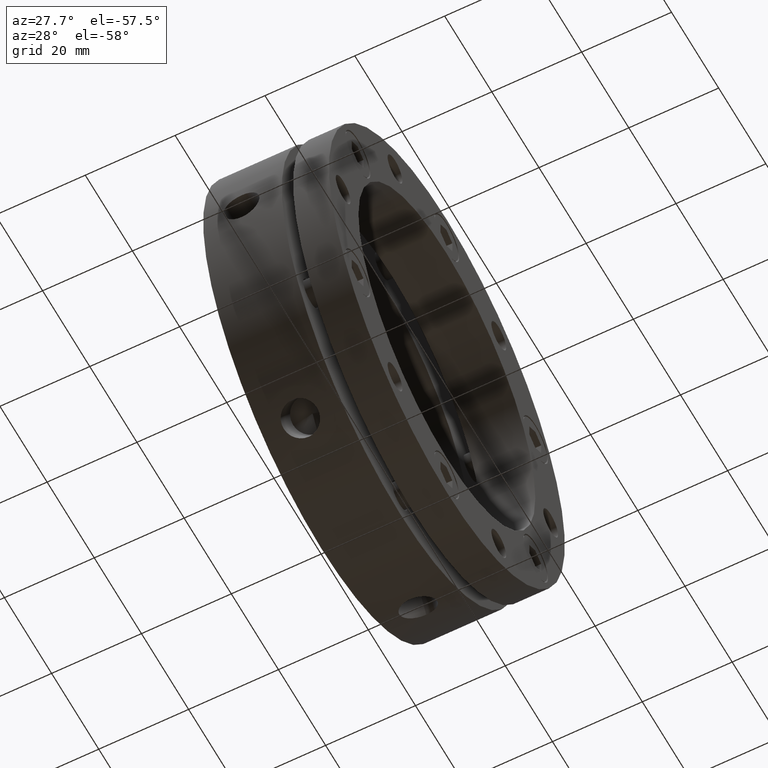
[diagram: clean part render]
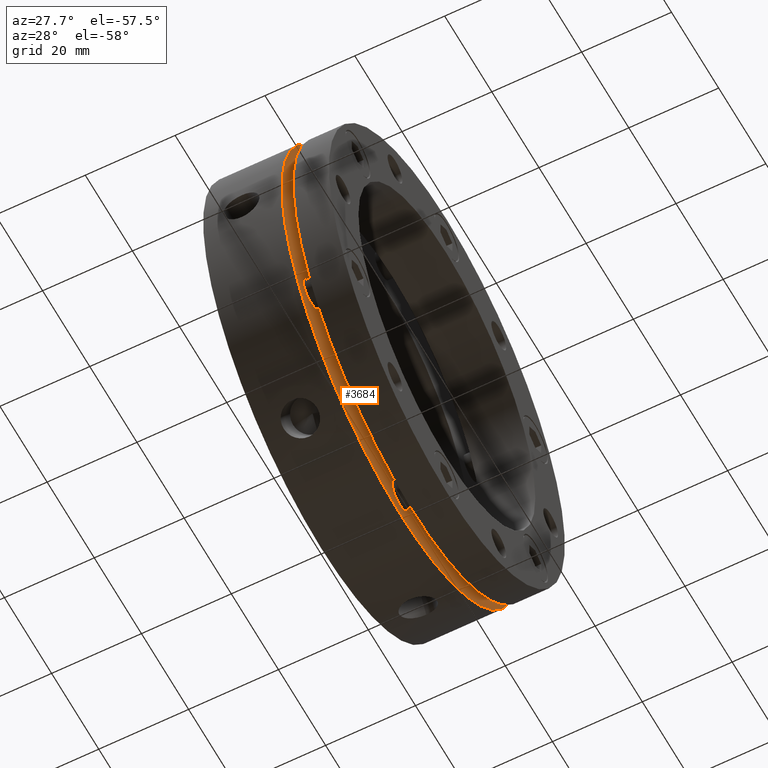
[diagram: same view with one face highlighted and labeled with its STEP entity id]
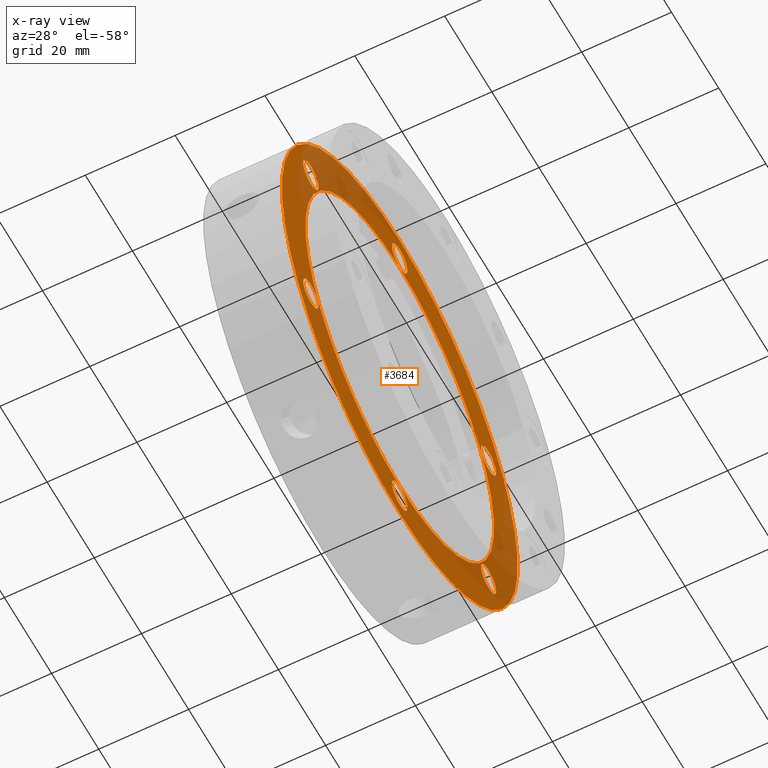
[diagram: x-ray of the same camera — body ghosted, the highlighted face saturated]
A machine part, auxiliary view. The second image highlights one B-rep face of the part: STEP entity #3684.
The next image is the same camera in x-ray: the body ghosted, the highlighted face saturated — about 31% of this face is hidden behind the body in this view.
In plain terms, the highlighted planar face has unit normal (-1, 0, 0).
Its self-contained STEP definition (entity closure, byte-faithful):
#65 = EDGE_LOOP ( 'NONE', ( #2707, #2708 ) ) ;
#66 = EDGE_LOOP ( 'NONE', ( #2701, #2702 ) ) ;
#78 = EDGE_LOOP ( 'NONE', ( #2703, #2704 ) ) ;
#79 = EDGE_LOOP ( 'NONE', ( #2705, #2706 ) ) ;
#86 = EDGE_LOOP ( 'NONE', ( #2709, #2710 ) ) ;
#87 = EDGE_LOOP ( 'NONE', ( #2711, #2712 ) ) ;
#88 = EDGE_LOOP ( 'NONE', ( #2713, #2714 ) ) ;
#89 = EDGE_LOOP ( 'NONE', ( #2715, #2716 ) ) ;
#192 = CIRCLE ( 'NONE', #3778, 3.249999999999999600 ) ;
#195 = CIRCLE ( 'NONE', #3773, 3.249999999999999600 ) ;
#201 = CIRCLE ( 'NONE', #3783, 50.00000000000000000 ) ;
#234 = CIRCLE ( 'NONE', #2470, 3.249999999999999600 ) ;
#241 = CIRCLE ( 'NONE', #2461, 3.249999999999999600 ) ;
#243 = CIRCLE ( 'NONE', #2474, 3.250000000000002700 ) ;
#245 = CIRCLE ( 'NONE', #2466, 3.250000000000002700 ) ;
#253 = CIRCLE ( 'NONE', #2468, 40.00000000000000000 ) ;
#279 = CIRCLE ( 'NONE', #3170, 40.00000000000000000 ) ;
#302 = CIRCLE ( 'NONE', #3415, 3.250000000000002700 ) ;
#356 = CIRCLE ( 'NONE', #3189, 50.00000000000000000 ) ;
#822 = CARTESIAN_POINT ( 'NONE',  ( 17.49999999999999600, 0.0000000000000000000, 0.0000000000000000000 ) ) ;
#823 = DIRECTION ( 'NONE',  ( -1.000000000000000000, -0.0000000000000000000, -0.0000000000000000000 ) ) ;
#824 = DIRECTION ( 'NONE',  ( 0.0000000000000000000, 0.0000000000000000000, -1.000000000000000000 ) ) ;
#1223 = DIRECTION ( 'NONE',  ( -1.000000000000000000, 0.0000000000000000000, 0.0000000000000000000 ) ) ;
#1225 = CARTESIAN_POINT ( 'NONE',  ( 17.49999999999999600, 45.00000000000000000, 0.0000000000000000000 ) ) ;
#1227 = PLANE ( 'NONE',  #3276 ) ;
#1229 = DIRECTION ( 'NONE',  ( 0.0000000000000000000, 0.0000000000000000000, 1.000000000000000000 ) ) ;
#1477 = CARTESIAN_POINT ( 'NONE',  ( 17.49999999999999600, -37.67210506462311800, -21.75000000000001100 ) ) ;
#1478 = DIRECTION ( 'NONE',  ( 1.000000000000000000, 0.0000000000000000000, 0.0000000000000000000 ) ) ;
#1479 = DIRECTION ( 'NONE',  ( 0.0000000000000000000, 0.0000000000000000000, -1.000000000000000000 ) ) ;
#1491 = CARTESIAN_POINT ( 'NONE',  ( 17.49999999999999600, -37.67210506462311100, 21.75000000000002100 ) ) ;
#1492 = DIRECTION ( 'NONE',  ( 1.000000000000000000, 0.0000000000000000000, 0.0000000000000000000 ) ) ;
#1493 = DIRECTION ( 'NONE',  ( 0.0000000000000000000, 0.0000000000000000000, -1.000000000000000000 ) ) ;
#1494 = CARTESIAN_POINT ( 'NONE',  ( 17.49999999999999600, -6.661337999999999900E-015, -43.50000000000002800 ) ) ;
#1495 = DIRECTION ( 'NONE',  ( 1.000000000000000000, 0.0000000000000000000, 0.0000000000000000000 ) ) ;
#1496 = DIRECTION ( 'NONE',  ( 0.0000000000000000000, 0.0000000000000000000, -1.000000000000000000 ) ) ;
#1515 = CARTESIAN_POINT ( 'NONE',  ( 17.49999999999999600, 37.67210506462309600, -21.75000000000003600 ) ) ;
#1516 = DIRECTION ( 'NONE',  ( 1.000000000000000000, 0.0000000000000000000, 0.0000000000000000000 ) ) ;
#1517 = DIRECTION ( 'NONE',  ( 0.0000000000000000000, 0.0000000000000000000, -1.000000000000000000 ) ) ;
#1525 = CARTESIAN_POINT ( 'NONE',  ( 17.49999999999999600, 37.67210506462313200, 21.74999999999998600 ) ) ;
#1526 = DIRECTION ( 'NONE',  ( 1.000000000000000000, 0.0000000000000000000, 0.0000000000000000000 ) ) ;
#1527 = DIRECTION ( 'NONE',  ( 0.0000000000000000000, 0.0000000000000000000, -1.000000000000000000 ) ) ;
#1717 = FACE_BOUND ( 'NONE', #66, .T. ) ;
#1719 = FACE_BOUND ( 'NONE', #65, .T. ) ;
#1721 = FACE_BOUND ( 'NONE', #79, .T. ) ;
#1723 = FACE_BOUND ( 'NONE', #86, .T. ) ;
#1725 = FACE_BOUND ( 'NONE', #78, .T. ) ;
#1726 = FACE_BOUND ( 'NONE', #87, .T. ) ;
#1727 = FACE_BOUND ( 'NONE', #88, .T. ) ;
#1728 = FACE_OUTER_BOUND ( 'NONE', #89, .T. ) ;
#1887 = CIRCLE ( 'NONE', #3351, 3.249999999999999600 ) ;
#1893 = CIRCLE ( 'NONE', #3357, 3.249999999999999600 ) ;
#1896 = CIRCLE ( 'NONE', #3358, 3.250000000000002700 ) ;
#1898 = CIRCLE ( 'NONE', #3363, 3.249999999999999600 ) ;
#1906 = CIRCLE ( 'NONE', #3365, 3.249999999999999600 ) ;
#2461 = AXIS2_PLACEMENT_3D ( 'NONE', #4228, #4229, #4230 ) ;
#2466 = AXIS2_PLACEMENT_3D ( 'NONE', #4233, #4234, #4235 ) ;
#2468 = AXIS2_PLACEMENT_3D ( 'NONE', #4353, #4354, #4355 ) ;
#2470 = AXIS2_PLACEMENT_3D ( 'NONE', #4216, #4217, #4218 ) ;
#2474 = AXIS2_PLACEMENT_3D ( 'NONE', #4225, #4226, #4227 ) ;
#2701 = ORIENTED_EDGE ( 'NONE', *, *, #3138, .F. ) ;
#2702 = ORIENTED_EDGE ( 'NONE', *, *, #3116, .F. ) ;
#2703 = ORIENTED_EDGE ( 'NONE', *, *, #3104, .F. ) ;
#2704 = ORIENTED_EDGE ( 'NONE', *, *, #3158, .F. ) ;
#2705 = ORIENTED_EDGE ( 'NONE', *, *, #3105, .F. ) ;
#2706 = ORIENTED_EDGE ( 'NONE', *, *, #4720, .F. ) ;
#2707 = ORIENTED_EDGE ( 'NONE', *, *, #3099, .F. ) ;
#2708 = ORIENTED_EDGE ( 'NONE', *, *, #4714, .F. ) ;
#2709 = ORIENTED_EDGE ( 'NONE', *, *, #3106, .F. ) ;
#2710 = ORIENTED_EDGE ( 'NONE', *, *, #4721, .F. ) ;
#2711 = ORIENTED_EDGE ( 'NONE', *, *, #3071, .F. ) ;
#2712 = ORIENTED_EDGE ( 'NONE', *, *, #4728, .F. ) ;
#2713 = ORIENTED_EDGE ( 'NONE', *, *, #3069, .F. ) ;
#2714 = ORIENTED_EDGE ( 'NONE', *, *, #4732, .F. ) ;
#2715 = ORIENTED_EDGE ( 'NONE', *, *, #3076, .F. ) ;
#2716 = ORIENTED_EDGE ( 'NONE', *, *, #3540, .F. ) ;
#2798 = VERTEX_POINT ( 'NONE', #3939 ) ;
#2799 = VERTEX_POINT ( 'NONE', #3940 ) ;
#2853 = VERTEX_POINT ( 'NONE', #3994 ) ;
#2854 = VERTEX_POINT ( 'NONE', #3995 ) ;
#2857 = VERTEX_POINT ( 'NONE', #3998 ) ;
#2858 = VERTEX_POINT ( 'NONE', #3999 ) ;
#2861 = VERTEX_POINT ( 'NONE', #4002 ) ;
#2862 = VERTEX_POINT ( 'NONE', #4003 ) ;
#2865 = VERTEX_POINT ( 'NONE', #4006 ) ;
#2866 = VERTEX_POINT ( 'NONE', #4007 ) ;
#2869 = VERTEX_POINT ( 'NONE', #4010 ) ;
#2870 = VERTEX_POINT ( 'NONE', #4011 ) ;
#2873 = VERTEX_POINT ( 'NONE', #4014 ) ;
#2874 = VERTEX_POINT ( 'NONE', #4015 ) ;
#2877 = VERTEX_POINT ( 'NONE', #4018 ) ;
#2878 = VERTEX_POINT ( 'NONE', #4019 ) ;
#3069 = EDGE_CURVE ( 'NONE', #2878, #2877, #192, .T. ) ;
#3071 = EDGE_CURVE ( 'NONE', #2874, #2873, #195, .T. ) ;
#3076 = EDGE_CURVE ( 'NONE', #2799, #2798, #201, .T. ) ;
#3099 = EDGE_CURVE ( 'NONE', #2866, #2865, #234, .T. ) ;
#3104 = EDGE_CURVE ( 'NONE', #2858, #2857, #243, .T. ) ;
#3105 = EDGE_CURVE ( 'NONE', #2862, #2861, #241, .T. ) ;
#3106 = EDGE_CURVE ( 'NONE', #2870, #2869, #245, .T. ) ;
#3116 = EDGE_CURVE ( 'NONE', #2853, #2854, #253, .T. ) ;
#3138 = EDGE_CURVE ( 'NONE', #2854, #2853, #279, .T. ) ;
#3158 = EDGE_CURVE ( 'NONE', #2857, #2858, #302, .T. ) ;
#3170 = AXIS2_PLACEMENT_3D ( 'NONE', #4415, #4416, #4417 ) ;
#3189 = AXIS2_PLACEMENT_3D ( 'NONE', #822, #823, #824 ) ;
#3276 = AXIS2_PLACEMENT_3D ( 'NONE', #1225, #1223, #1229 ) ;
#3351 = AXIS2_PLACEMENT_3D ( 'NONE', #1477, #1478, #1479 ) ;
#3357 = AXIS2_PLACEMENT_3D ( 'NONE', #1491, #1492, #1493 ) ;
#3358 = AXIS2_PLACEMENT_3D ( 'NONE', #1494, #1495, #1496 ) ;
#3363 = AXIS2_PLACEMENT_3D ( 'NONE', #1515, #1516, #1517 ) ;
#3365 = AXIS2_PLACEMENT_3D ( 'NONE', #1525, #1526, #1527 ) ;
#3415 = AXIS2_PLACEMENT_3D ( 'NONE', #4471, #4472, #4473 ) ;
#3540 = EDGE_CURVE ( 'NONE', #2798, #2799, #356, .T. ) ;
#3684 = ADVANCED_FACE ( 'NONE', ( #1717, #1725, #1721, #1719, #1723, #1726, #1727, #1728 ), #1227, .F. ) ;
#3773 = AXIS2_PLACEMENT_3D ( 'NONE', #4143, #4144, #4145 ) ;
#3778 = AXIS2_PLACEMENT_3D ( 'NONE', #4134, #4135, #4136 ) ;
#3783 = AXIS2_PLACEMENT_3D ( 'NONE', #4154, #4155, #4156 ) ;
#3939 = CARTESIAN_POINT ( 'NONE',  ( 17.49999999999999600, 6.123233995736766100E-015, 50.00000000000000000 ) ) ;
#3940 = CARTESIAN_POINT ( 'NONE',  ( 17.49999999999999600, 0.0000000000000000000, -50.00000000000000000 ) ) ;
#3994 = CARTESIAN_POINT ( 'NONE',  ( 17.49999999999999600, 4.898587196589413000E-015, -40.00000000000000000 ) ) ;
#3995 = CARTESIAN_POINT ( 'NONE',  ( 17.49999999999999600, 0.0000000000000000000, 40.00000000000000000 ) ) ;
#3998 = CARTESIAN_POINT ( 'NONE',  ( 17.49999999999999600, 3.980102097228895300E-016, 46.75000000000003600 ) ) ;
#3999 = CARTESIAN_POINT ( 'NONE',  ( 17.49999999999999600, 0.0000000000000000000, 40.25000000000002800 ) ) ;
#4002 = CARTESIAN_POINT ( 'NONE',  ( 17.49999999999999600, -37.67210506462311100, 25.00000000000002100 ) ) ;
#4003 = CARTESIAN_POINT ( 'NONE',  ( 17.49999999999999600, -37.67210506462311100, 18.50000000000002500 ) ) ;
#4006 = CARTESIAN_POINT ( 'NONE',  ( 17.49999999999999600, -37.67210506462311800, -18.50000000000001100 ) ) ;
#4007 = CARTESIAN_POINT ( 'NONE',  ( 17.49999999999999600, -37.67210506462311800, -25.00000000000000700 ) ) ;
#4010 = CARTESIAN_POINT ( 'NONE',  ( 17.49999999999999600, -6.263327790277110600E-015, -40.25000000000002800 ) ) ;
#4011 = CARTESIAN_POINT ( 'NONE',  ( 17.49999999999999600, -6.661337999999999900E-015, -46.75000000000003600 ) ) ;
#4014 = CARTESIAN_POINT ( 'NONE',  ( 17.49999999999999600, 37.67210506462309600, -18.50000000000003600 ) ) ;
#4015 = CARTESIAN_POINT ( 'NONE',  ( 17.49999999999999600, 37.67210506462309600, -25.00000000000003600 ) ) ;
#4018 = CARTESIAN_POINT ( 'NONE',  ( 17.49999999999999600, 37.67210506462313200, 24.99999999999998600 ) ) ;
#4019 = CARTESIAN_POINT ( 'NONE',  ( 17.49999999999999600, 37.67210506462313200, 18.49999999999998600 ) ) ;
#4134 = CARTESIAN_POINT ( 'NONE',  ( 17.49999999999999600, 37.67210506462313200, 21.74999999999998600 ) ) ;
#4135 = DIRECTION ( 'NONE',  ( 1.000000000000000000, 0.0000000000000000000, 0.0000000000000000000 ) ) ;
#4136 = DIRECTION ( 'NONE',  ( 0.0000000000000000000, 0.0000000000000000000, -1.000000000000000000 ) ) ;
#4143 = CARTESIAN_POINT ( 'NONE',  ( 17.49999999999999600, 37.67210506462309600, -21.75000000000003600 ) ) ;
#4144 = DIRECTION ( 'NONE',  ( 1.000000000000000000, 0.0000000000000000000, 0.0000000000000000000 ) ) ;
#4145 = DIRECTION ( 'NONE',  ( 0.0000000000000000000, 0.0000000000000000000, -1.000000000000000000 ) ) ;
#4154 = CARTESIAN_POINT ( 'NONE',  ( 17.49999999999999600, 0.0000000000000000000, 0.0000000000000000000 ) ) ;
#4155 = DIRECTION ( 'NONE',  ( -1.000000000000000000, -0.0000000000000000000, -0.0000000000000000000 ) ) ;
#4156 = DIRECTION ( 'NONE',  ( 0.0000000000000000000, 0.0000000000000000000, -1.000000000000000000 ) ) ;
#4216 = CARTESIAN_POINT ( 'NONE',  ( 17.49999999999999600, -37.67210506462311800, -21.75000000000001100 ) ) ;
#4217 = DIRECTION ( 'NONE',  ( 1.000000000000000000, 0.0000000000000000000, 0.0000000000000000000 ) ) ;
#4218 = DIRECTION ( 'NONE',  ( 0.0000000000000000000, 0.0000000000000000000, -1.000000000000000000 ) ) ;
#4225 = CARTESIAN_POINT ( 'NONE',  ( 17.49999999999999600, 0.0000000000000000000, 43.50000000000002800 ) ) ;
#4226 = DIRECTION ( 'NONE',  ( 1.000000000000000000, 0.0000000000000000000, 0.0000000000000000000 ) ) ;
#4227 = DIRECTION ( 'NONE',  ( 0.0000000000000000000, 0.0000000000000000000, -1.000000000000000000 ) ) ;
#4228 = CARTESIAN_POINT ( 'NONE',  ( 17.49999999999999600, -37.67210506462311100, 21.75000000000002100 ) ) ;
#4229 = DIRECTION ( 'NONE',  ( 1.000000000000000000, 0.0000000000000000000, 0.0000000000000000000 ) ) ;
#4230 = DIRECTION ( 'NONE',  ( 0.0000000000000000000, 0.0000000000000000000, -1.000000000000000000 ) ) ;
#4233 = CARTESIAN_POINT ( 'NONE',  ( 17.49999999999999600, -6.661337999999999900E-015, -43.50000000000002800 ) ) ;
#4234 = DIRECTION ( 'NONE',  ( 1.000000000000000000, 0.0000000000000000000, 0.0000000000000000000 ) ) ;
#4235 = DIRECTION ( 'NONE',  ( 0.0000000000000000000, 0.0000000000000000000, -1.000000000000000000 ) ) ;
#4353 = CARTESIAN_POINT ( 'NONE',  ( 17.49999999999999600, 0.0000000000000000000, 0.0000000000000000000 ) ) ;
#4354 = DIRECTION ( 'NONE',  ( 1.000000000000000000, -0.0000000000000000000, -0.0000000000000000000 ) ) ;
#4355 = DIRECTION ( 'NONE',  ( 0.0000000000000000000, 0.0000000000000000000, 1.000000000000000000 ) ) ;
#4415 = CARTESIAN_POINT ( 'NONE',  ( 17.49999999999999600, 0.0000000000000000000, 0.0000000000000000000 ) ) ;
#4416 = DIRECTION ( 'NONE',  ( 1.000000000000000000, -0.0000000000000000000, -0.0000000000000000000 ) ) ;
#4417 = DIRECTION ( 'NONE',  ( 0.0000000000000000000, 0.0000000000000000000, 1.000000000000000000 ) ) ;
#4471 = CARTESIAN_POINT ( 'NONE',  ( 17.49999999999999600, 0.0000000000000000000, 43.50000000000002800 ) ) ;
#4472 = DIRECTION ( 'NONE',  ( 1.000000000000000000, 0.0000000000000000000, 0.0000000000000000000 ) ) ;
#4473 = DIRECTION ( 'NONE',  ( 0.0000000000000000000, 0.0000000000000000000, -1.000000000000000000 ) ) ;
#4714 = EDGE_CURVE ( 'NONE', #2865, #2866, #1887, .T. ) ;
#4720 = EDGE_CURVE ( 'NONE', #2861, #2862, #1893, .T. ) ;
#4721 = EDGE_CURVE ( 'NONE', #2869, #2870, #1896, .T. ) ;
#4728 = EDGE_CURVE ( 'NONE', #2873, #2874, #1898, .T. ) ;
#4732 = EDGE_CURVE ( 'NONE', #2877, #2878, #1906, .T. ) ;